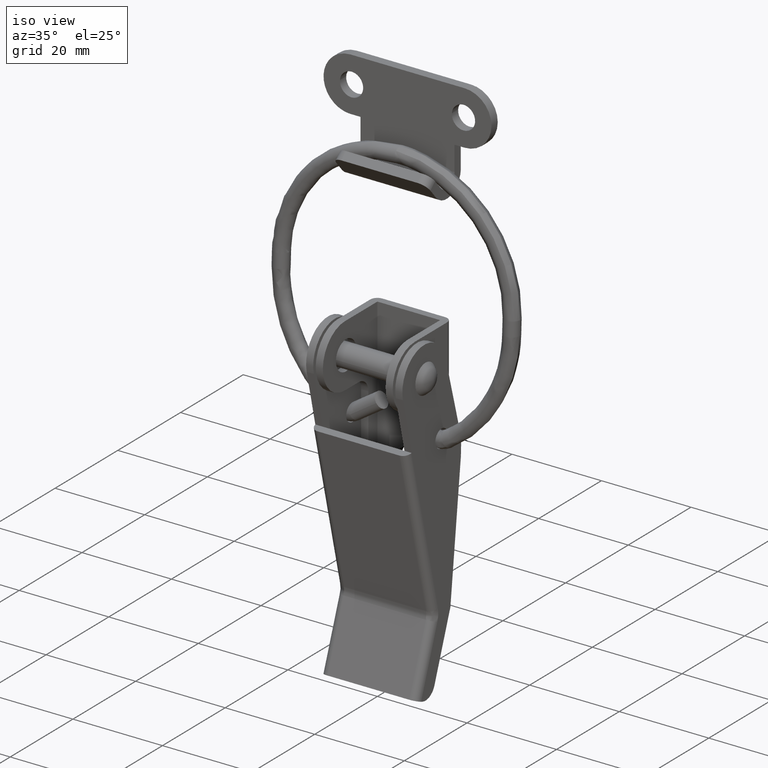
[diagram: clean part render]
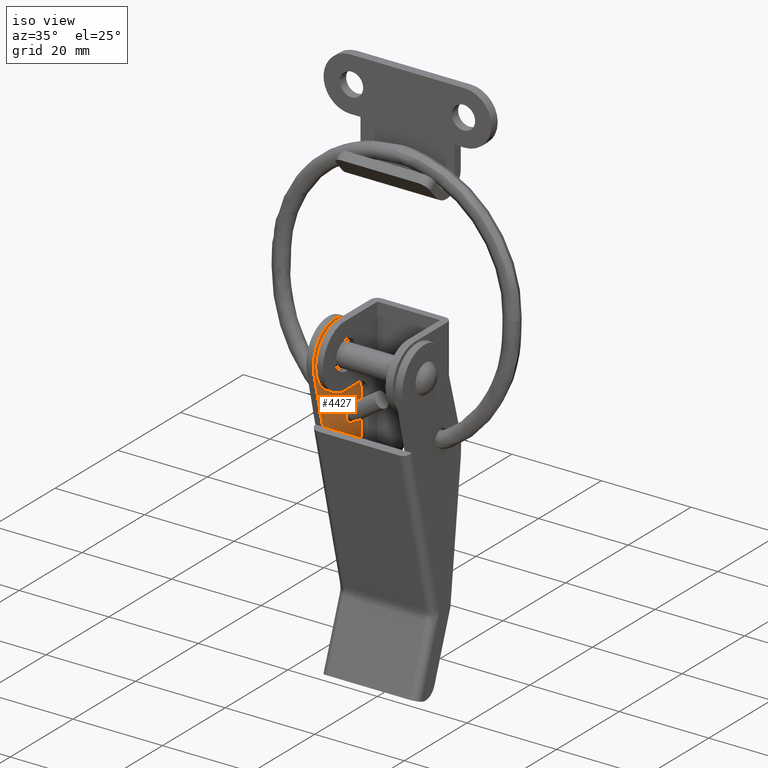
[diagram: same view with one face highlighted and labeled with its STEP entity id]
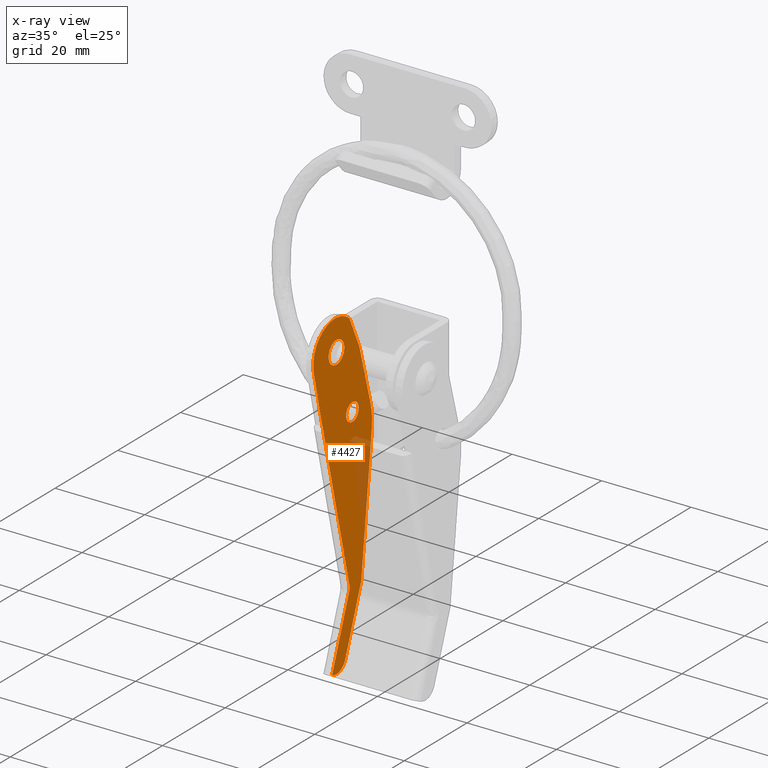
[diagram: x-ray of the same camera — body ghosted, the highlighted face saturated]
A machine part, iso view. The second image highlights one B-rep face of the part: STEP entity #4427.
The next image is the same camera in x-ray: the body ghosted, the highlighted face saturated — about 10% of this face is hidden behind the body in this view.
In plain terms, the highlighted face is a freeform B-spline surface patch.
Its self-contained STEP definition (entity closure, byte-faithful):
#2654=CARTESIAN_POINT('',(-9.149999999999999,7.084522427588231,-14.248240004661220));
#2655=VERTEX_POINT('',#2654);
#2656=CARTESIAN_POINT('',(-9.150000000000000,5.099989999999909,-15.999983999999900));
#2657=VERTEX_POINT('',#2656);
#2658=CARTESIAN_POINT('',(-9.149999999999999,7.084522427588232,-14.248240004661222));
#2659=CARTESIAN_POINT('',(-9.150000000000000,6.865387199400868,-15.999983999999904));
#2660=CARTESIAN_POINT('',(-9.150000000000000,5.099989999999909,-15.999983999999900));
#2668=(BOUNDED_CURVE()B_SPLINE_CURVE(2,(#2658,#2659,#2660),.UNSPECIFIED.,.F.,.U.)B_SPLINE_CURVE_WITH_KNOTS((3,3),(0.271473929055965,0.500000000000000),.UNSPECIFIED.)CURVE()GEOMETRIC_REPRESENTATION_ITEM()RATIONAL_B_SPLINE_CURVE((0.954005430109256,0.732265053993640,1.0))REPRESENTATION_ITEM(''));
#2669=EDGE_CURVE('',#2655,#2657,#2668,.T.);
#2710=CARTESIAN_POINT('',(-9.150000000000002,3.100066153878176,-13.982530928245851));
#2711=VERTEX_POINT('',#2710);
#2717=CARTESIAN_POINT('',(-9.150000000000000,5.099989999999909,-15.999983999999900));
#2718=CARTESIAN_POINT('',(-9.150000000000000,3.099989999999910,-15.999983999999898));
#2719=CARTESIAN_POINT('',(-9.150000000000000,3.099989999999909,-13.999983999999900));
#2720=CARTESIAN_POINT('',(-9.150000000000000,3.099989999999909,-13.991257297601143));
#2721=CARTESIAN_POINT('',(-9.150000000000002,3.100066153878176,-13.982530928245847));
#2729=(BOUNDED_CURVE()B_SPLINE_CURVE(2,(#2717,#2718,#2719,#2720,#2721),.UNSPECIFIED.,.F.,.U.)B_SPLINE_CURVE_WITH_KNOTS((3,2,3),(0.500000000000000,0.750000000000000,0.751539894468387),.UNSPECIFIED.)CURVE()GEOMETRIC_REPRESENTATION_ITEM()RATIONAL_B_SPLINE_CURVE((1.0,0.707106781186548,1.0,0.998195901410085,0.996414027791682))REPRESENTATION_ITEM(''));
#2730=EDGE_CURVE('',#2657,#2711,#2729,.T.);
#2757=CARTESIAN_POINT('',(-9.150000000000000,5.099989999999909,-11.999983999999900));
#2758=VERTEX_POINT('',#2757);
#2759=CARTESIAN_POINT('',(-9.150000000000000,5.099989999999909,-11.999983999999900));
#2760=CARTESIAN_POINT('',(-9.150000000000000,7.099989999999909,-11.999983999999898));
#2761=CARTESIAN_POINT('',(-9.150000000000000,7.099989999999909,-13.999983999999900));
#2762=CARTESIAN_POINT('',(-9.149999999999999,7.099989999999909,-14.124593855574425));
#2763=CARTESIAN_POINT('',(-9.149999999999999,7.084522427588231,-14.248240004661229));
#2771=(BOUNDED_CURVE()B_SPLINE_CURVE(2,(#2759,#2760,#2761,#2762,#2763),.UNSPECIFIED.,.F.,.U.)B_SPLINE_CURVE_WITH_KNOTS((3,2,3),(0.0,0.250000000000000,0.271473929055964),.UNSPECIFIED.)CURVE()GEOMETRIC_REPRESENTATION_ITEM()RATIONAL_B_SPLINE_CURVE((1.0,0.707106781186548,1.0,0.974841727192908,0.954005430109256))REPRESENTATION_ITEM(''));
#2772=EDGE_CURVE('',#2758,#2655,#2771,.T.);
#2774=CARTESIAN_POINT('',(-9.150000000000002,3.100066153878176,-13.982530928245856));
#2775=CARTESIAN_POINT('',(-9.150000000000000,3.117367580311513,-11.999983999999898));
#2776=CARTESIAN_POINT('',(-9.150000000000000,5.099989999999909,-11.999983999999900));
#2784=(BOUNDED_CURVE()B_SPLINE_CURVE(2,(#2774,#2775,#2776),.UNSPECIFIED.,.F.,.U.)B_SPLINE_CURVE_WITH_KNOTS((3,3),(0.751539894468386,1.0),.UNSPECIFIED.)CURVE()GEOMETRIC_REPRESENTATION_ITEM()RATIONAL_B_SPLINE_CURVE((0.996414027791684,0.708910879776462,1.0))REPRESENTATION_ITEM(''));
#2785=EDGE_CURVE('',#2711,#2758,#2784,.T.);
#3026=CARTESIAN_POINT('',(-9.150000000000000,2.480665534536476,-0.310320005417686));
#3027=VERTEX_POINT('',#3026);
#3028=CARTESIAN_POINT('',(-9.150000000000000,0.0,-2.499999999999915));
#3029=VERTEX_POINT('',#3028);
#3030=CARTESIAN_POINT('',(-9.150000000000000,2.480665534536477,-0.310320005417686));
#3031=CARTESIAN_POINT('',(-9.150000000000000,2.206746499984398,-2.499999999999916));
#3032=CARTESIAN_POINT('',(-9.150000000000000,0.0,-2.499999999999915));
#3040=(BOUNDED_CURVE()B_SPLINE_CURVE(2,(#3030,#3031,#3032),.UNSPECIFIED.,.F.,.U.)B_SPLINE_CURVE_WITH_KNOTS((3,3),(0.271473929000359,0.500000000000000),.UNSPECIFIED.)CURVE()GEOMETRIC_REPRESENTATION_ITEM()RATIONAL_B_SPLINE_CURVE((0.954005430217164,0.732265053928494,1.0))REPRESENTATION_ITEM(''));
#3041=EDGE_CURVE('',#3027,#3029,#3040,.T.);
#3082=CARTESIAN_POINT('',(-9.149999999999999,-2.499904807654442,0.021816339422121));
#3083=VERTEX_POINT('',#3082);
#3089=CARTESIAN_POINT('',(-9.150000000000000,0.0,-2.499999999999915));
#3090=CARTESIAN_POINT('',(-9.150000000000002,-2.499999999999916,-2.499999999999916));
#3091=CARTESIAN_POINT('',(-9.150000000000000,-2.499999999999915,0.0));
#3092=CARTESIAN_POINT('',(-9.150000000000002,-2.499999999999915,0.010908377727978));
#3093=CARTESIAN_POINT('',(-9.149999999999999,-2.499904807654442,0.021816339422121));
#3101=(BOUNDED_CURVE()B_SPLINE_CURVE(2,(#3089,#3090,#3091,#3092,#3093),.UNSPECIFIED.,.F.,.U.)B_SPLINE_CURVE_WITH_KNOTS((3,2,3),(0.500000000000000,0.750000000000000,0.751539894430275),.UNSPECIFIED.)CURVE()GEOMETRIC_REPRESENTATION_ITEM()RATIONAL_B_SPLINE_CURVE((1.0,0.707106781186547,1.0,0.998195901454735,0.996414027879883))REPRESENTATION_ITEM(''));
#3102=EDGE_CURVE('',#3029,#3083,#3101,.T.);
#3129=CARTESIAN_POINT('',(-9.150000000000000,0.0,2.499999999999915));
#3130=VERTEX_POINT('',#3129);
#3131=CARTESIAN_POINT('',(-9.150000000000000,0.0,2.499999999999915));
#3132=CARTESIAN_POINT('',(-9.150000000000002,2.499999999999916,2.499999999999916));
#3133=CARTESIAN_POINT('',(-9.150000000000000,2.499999999999915,0.0));
#3134=CARTESIAN_POINT('',(-9.150000000000000,2.499999999999916,-0.155762319054408));
#3135=CARTESIAN_POINT('',(-9.150000000000000,2.480665534536476,-0.310320005417686));
#3143=(BOUNDED_CURVE()B_SPLINE_CURVE(2,(#3131,#3132,#3133,#3134,#3135),.UNSPECIFIED.,.F.,.U.)B_SPLINE_CURVE_WITH_KNOTS((3,2,3),(0.0,0.250000000000000,0.271473929000359),.UNSPECIFIED.)CURVE()GEOMETRIC_REPRESENTATION_ITEM()RATIONAL_B_SPLINE_CURVE((1.0,0.707106781186547,1.0,0.974841727258053,0.954005430217164))REPRESENTATION_ITEM(''));
#3144=EDGE_CURVE('',#3130,#3027,#3143,.T.);
#3146=CARTESIAN_POINT('',(-9.149999999999999,-2.499904807654442,0.021816339422121));
#3147=CARTESIAN_POINT('',(-9.150000000000000,-2.478278025146636,2.499999999999916));
#3148=CARTESIAN_POINT('',(-9.150000000000000,0.0,2.499999999999915));
#3156=(BOUNDED_CURVE()B_SPLINE_CURVE(2,(#3146,#3147,#3148),.UNSPECIFIED.,.F.,.U.)B_SPLINE_CURVE_WITH_KNOTS((3,3),(0.751539894430275,1.0),.UNSPECIFIED.)CURVE()GEOMETRIC_REPRESENTATION_ITEM()RATIONAL_B_SPLINE_CURVE((0.996414027879883,0.708910879731812,1.0))REPRESENTATION_ITEM(''));
#3157=EDGE_CURVE('',#3083,#3130,#3156,.T.);
#3225=CARTESIAN_POINT('',(-9.150000000000000,4.105346942063965,-49.670321217863602));
#3226=VERTEX_POINT('',#3225);
#3232=CARTESIAN_POINT('',(-9.150000000000000,4.157998838046685,-48.742116237737697));
#3233=VERTEX_POINT('',#3232);
#3234=CARTESIAN_POINT('',(-9.150000000000000,4.157998838046688,-48.742116237737697));
#3235=CARTESIAN_POINT('',(-9.150000000000000,4.272586965696381,-49.214211998050224));
#3236=CARTESIAN_POINT('',(-9.150000000000000,4.105346942063980,-49.670321217863602));
#3244=(BOUNDED_CURVE()B_SPLINE_CURVE(2,(#3234,#3235,#3236),.UNSPECIFIED.,.F.,.U.)CURVE()GEOMETRIC_REPRESENTATION_ITEM()QUASI_UNIFORM_CURVE()RATIONAL_B_SPLINE_CURVE((1.0,0.956865778690815,1.0))REPRESENTATION_ITEM(''));
#3245=EDGE_CURVE('',#3233,#3226,#3244,.T.);
#3721=CARTESIAN_POINT('',(-9.150000000000000,-1.022260600939318,-64.816627879655300));
#3722=VERTEX_POINT('',#3721);
#3723=CARTESIAN_POINT('',(-9.150000000000000,2.827132448345435,-63.032761504513907));
#3724=VERTEX_POINT('',#3723);
#3725=CARTESIAN_POINT('',(-9.150000000000000,-1.022260600939312,-64.816627879655286));
#3726=CARTESIAN_POINT('',(-9.150000000000000,0.144425635429936,-65.244412688015515));
#3727=CARTESIAN_POINT('',(-9.150000000000000,1.271886835144635,-64.721930286842863));
#3728=CARTESIAN_POINT('',(-9.150000000000000,2.399348034859334,-64.199447885670224));
#3729=CARTESIAN_POINT('',(-9.150000000000000,2.827132448345419,-63.032761504513907));
#3737=(BOUNDED_CURVE()B_SPLINE_CURVE(2,(#3725,#3726,#3727,#3728,#3729),.UNSPECIFIED.,.F.,.U.)B_SPLINE_CURVE_WITH_KNOTS((3,2,3),(0.0,0.500000000000000,1.0),.UNSPECIFIED.)CURVE()GEOMETRIC_REPRESENTATION_ITEM()RATIONAL_B_SPLINE_CURVE((1.0,0.923879500130729,1.0,0.923879500130729,1.0))REPRESENTATION_ITEM(''));
#3738=EDGE_CURVE('',#3722,#3724,#3737,.T.);
#3777=CARTESIAN_POINT('',(-9.150000000000000,-1.397807834248284,-64.678927274108403));
#3778=VERTEX_POINT('',#3777);
#3779=CARTESIAN_POINT('',(-9.150000000000000,4.105346942063965,-49.670321217863602));
#3780=CARTESIAN_POINT('',(-9.150000000000000,-1.397807834248284,-64.678927274108403));
#3781=QUASI_UNIFORM_CURVE('',1,(#3779,#3780),.UNSPECIFIED.,.F.,.U.);
#3782=EDGE_CURVE('',#3226,#3778,#3781,.T.);
#3813=CARTESIAN_POINT('',(-9.149999999999880,-4.448127479856455,-13.285425996523740));
#3814=VERTEX_POINT('',#3813);
#3815=CARTESIAN_POINT('',(-9.149999999999880,-4.448127479856455,-13.285425996523740));
#3816=CARTESIAN_POINT('',(-9.150000000000000,4.157998838046685,-48.742116237737697));
#3817=QUASI_UNIFORM_CURVE('',1,(#3815,#3816),.UNSPECIFIED.,.F.,.U.);
#3818=EDGE_CURVE('',#3814,#3233,#3817,.T.);
#3868=CARTESIAN_POINT('',(-9.150000000000000,-7.210878992830090,-1.616187972516490));
#3869=VERTEX_POINT('',#3868);
#3870=CARTESIAN_POINT('',(-9.150000000000000,-7.210878992830090,-1.616187972516490));
#3871=CARTESIAN_POINT('',(-9.149999999999880,-4.448127479856455,-13.285425996523740));
#3872=QUASI_UNIFORM_CURVE('',1,(#3870,#3871),.UNSPECIFIED.,.F.,.U.);
#3873=EDGE_CURVE('',#3869,#3814,#3872,.T.);
#4133=CARTESIAN_POINT('',(-9.150000000000000,-1.397807834248284,-64.678927274108403));
#4134=CARTESIAN_POINT('',(-9.150000000000000,-1.022260600939318,-64.816627879655300));
#4135=QUASI_UNIFORM_CURVE('',1,(#4133,#4134),.UNSPECIFIED.,.F.,.U.);
#4136=EDGE_CURVE('',#3778,#3722,#4135,.T.);
#4196=CARTESIAN_POINT('',(-9.150000000000000,4.104109228283385,5.358442868726609));
#4197=VERTEX_POINT('',#4196);
#4198=CARTESIAN_POINT('',(-9.150000000000000,4.104109228283384,5.358442868726609));
#4199=CARTESIAN_POINT('',(-9.150000000000000,0.232423982190743,8.612845759641715));
#4200=CARTESIAN_POINT('',(-9.150000000000000,-4.073107121226775,5.958888951644952));
#4201=CARTESIAN_POINT('',(-9.150000000000000,-8.378638224644288,3.304932143648193));
#4202=CARTESIAN_POINT('',(-9.150000000000000,-7.210878992830086,-1.616187972516490));
#4210=(BOUNDED_CURVE()B_SPLINE_CURVE(2,(#4198,#4199,#4200,#4201,#4202),.UNSPECIFIED.,.F.,.U.)B_SPLINE_CURVE_WITH_KNOTS((3,2,3),(0.0,0.500000000000000,1.0),.UNSPECIFIED.)CURVE()GEOMETRIC_REPRESENTATION_ITEM()RATIONAL_B_SPLINE_CURVE((1.0,0.810557244937375,1.0,0.810557244937375,1.0))REPRESENTATION_ITEM(''));
#4211=EDGE_CURVE('',#4197,#3869,#4210,.T.);
#4244=CARTESIAN_POINT('',(-9.150000000000000,7.332350999999901,-1.673690999999905));
#4245=VERTEX_POINT('',#4244);
#4246=CARTESIAN_POINT('',(-9.150000000000000,7.332350999999901,-1.673690999999905));
#4247=CARTESIAN_POINT('',(-9.150000000000000,4.104109228283385,5.358442868726609));
#4248=QUASI_UNIFORM_CURVE('',1,(#4246,#4247),.UNSPECIFIED.,.F.,.U.);
#4249=EDGE_CURVE('',#4245,#4197,#4248,.T.);
#4272=CARTESIAN_POINT('',(-9.150000000000000,10.821014000000000,-14.202453000000000));
#4273=VERTEX_POINT('',#4272);
#4274=CARTESIAN_POINT('',(-9.150000000000000,10.821014000000000,-14.202453000000000));
#4275=CARTESIAN_POINT('',(-9.150000000000000,7.332350999999901,-1.673690999999905));
#4276=QUASI_UNIFORM_CURVE('',1,(#4274,#4275),.UNSPECIFIED.,.F.,.U.);
#4277=EDGE_CURVE('',#4273,#4245,#4276,.T.);
#4309=CARTESIAN_POINT('',(-9.150000000000000,11.278625000000000,-19.886108000000100));
#4310=VERTEX_POINT('',#4309);
#4311=CARTESIAN_POINT('',(-9.150000000000000,11.278625000000000,-19.886108000000100));
#4312=CARTESIAN_POINT('',(-9.150000000000000,11.599992380416937,-16.999984021477353));
#4313=CARTESIAN_POINT('',(-9.150000000000000,10.821014000000000,-14.202453000000000));
#4321=(BOUNDED_CURVE()B_SPLINE_CURVE(2,(#4311,#4312,#4313),.UNSPECIFIED.,.F.,.U.)CURVE()GEOMETRIC_REPRESENTATION_ITEM()QUASI_UNIFORM_CURVE()RATIONAL_B_SPLINE_CURVE((1.0,0.981770714369450,1.0))REPRESENTATION_ITEM(''));
#4322=EDGE_CURVE('',#4310,#4273,#4321,.T.);
#4353=CARTESIAN_POINT('',(-9.150000000000000,7.925512825511469,-49.128068475795097));
#4354=VERTEX_POINT('',#4353);
#4355=CARTESIAN_POINT('',(-9.150000000000000,7.925512825511469,-49.128068475795097));
#4356=CARTESIAN_POINT('',(-9.150000000000000,11.278625000000000,-19.886108000000100));
#4357=QUASI_UNIFORM_CURVE('',1,(#4355,#4356),.UNSPECIFIED.,.F.,.U.);
#4358=EDGE_CURVE('',#4354,#4310,#4357,.T.);
#4381=CARTESIAN_POINT('',(-9.150000000000000,2.827132448345435,-63.032761504513907));
#4382=CARTESIAN_POINT('',(-9.150000000000000,7.925512825511469,-49.128068475795097));
#4383=QUASI_UNIFORM_CURVE('',1,(#4381,#4382),.UNSPECIFIED.,.F.,.U.);
#4384=EDGE_CURVE('',#3724,#4354,#4383,.T.);
#4396=CARTESIAN_POINT('',(-9.150000000000000,-8.336506588387090,10.592717677274610));
#4397=CARTESIAN_POINT('',(-9.150000000000000,12.308190016540630,10.592717677274610));
#4398=CARTESIAN_POINT('',(-9.150000000000000,-8.336506588387090,-68.595864236761656));
#4399=CARTESIAN_POINT('',(-9.150000000000000,12.308190016540630,-68.595864236761656));
#4400=B_SPLINE_SURFACE_WITH_KNOTS('',1,1,((#4396,#4398),(#4397,#4399)),.UNSPECIFIED.,.F.,.F.,.U.,(2,2),(2,2),(0.0,20.644696604927720),(0.0,79.188581914036263),.UNSPECIFIED.);
#4401=ORIENTED_EDGE('',*,*,#4136,.T.);
#4402=ORIENTED_EDGE('',*,*,#3738,.T.);
#4403=ORIENTED_EDGE('',*,*,#4384,.T.);
#4404=ORIENTED_EDGE('',*,*,#4358,.T.);
#4405=ORIENTED_EDGE('',*,*,#4322,.T.);
#4406=ORIENTED_EDGE('',*,*,#4277,.T.);
#4407=ORIENTED_EDGE('',*,*,#4249,.T.);
#4408=ORIENTED_EDGE('',*,*,#4211,.T.);
#4409=ORIENTED_EDGE('',*,*,#3873,.T.);
#4410=ORIENTED_EDGE('',*,*,#3818,.T.);
#4411=ORIENTED_EDGE('',*,*,#3245,.T.);
#4412=ORIENTED_EDGE('',*,*,#3782,.T.);
#4413=EDGE_LOOP('',(#4401,#4402,#4403,#4404,#4405,#4406,#4407,#4408,#4409,#4410,#4411,#4412));
#4414=FACE_OUTER_BOUND('',#4413,.T.);
#4415=ORIENTED_EDGE('',*,*,#3102,.T.);
#4416=ORIENTED_EDGE('',*,*,#3157,.T.);
#4417=ORIENTED_EDGE('',*,*,#3144,.T.);
#4418=ORIENTED_EDGE('',*,*,#3041,.T.);
#4419=EDGE_LOOP('',(#4415,#4416,#4417,#4418));
#4420=FACE_BOUND('',#4419,.T.);
#4421=ORIENTED_EDGE('',*,*,#2730,.T.);
#4422=ORIENTED_EDGE('',*,*,#2785,.T.);
#4423=ORIENTED_EDGE('',*,*,#2772,.T.);
#4424=ORIENTED_EDGE('',*,*,#2669,.T.);
#4425=EDGE_LOOP('',(#4421,#4422,#4423,#4424));
#4426=FACE_BOUND('',#4425,.T.);
#4427=ADVANCED_FACE('',(#4414,#4420,#4426),#4400,.F.);